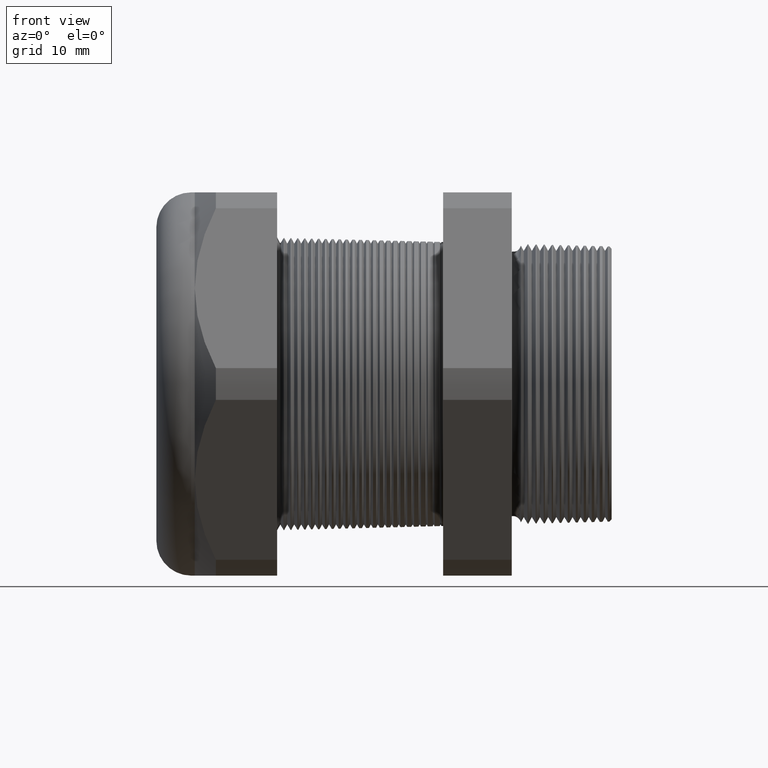
[diagram: clean part render]
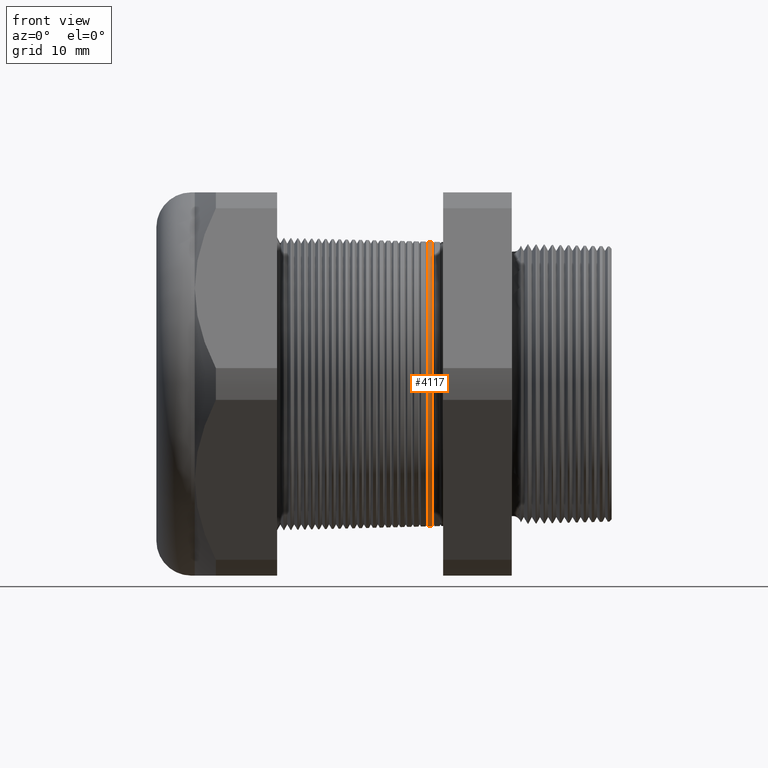
[diagram: same view with one face highlighted and labeled with its STEP entity id]
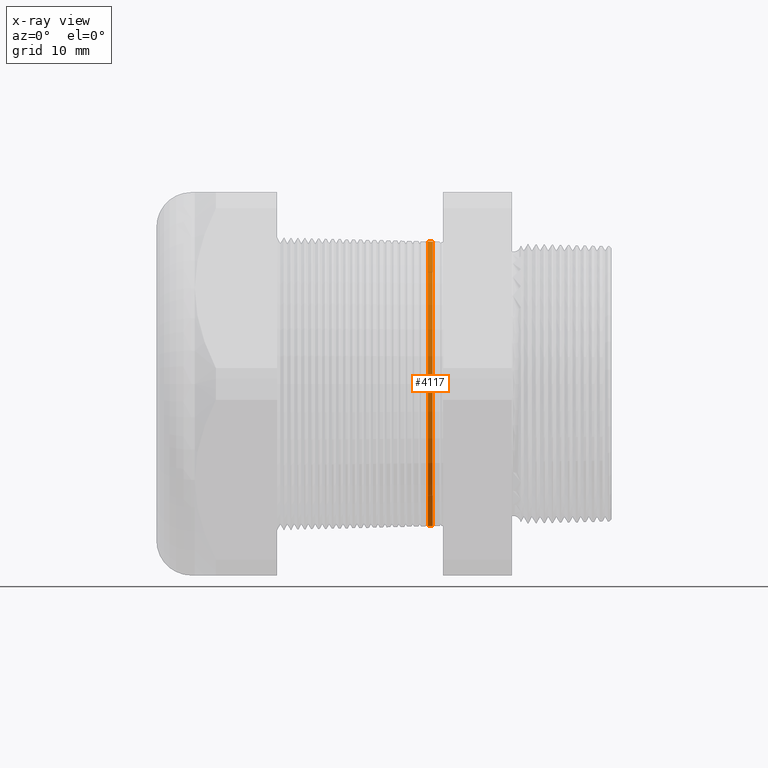
[diagram: x-ray of the same camera — body ghosted, the highlighted face saturated]
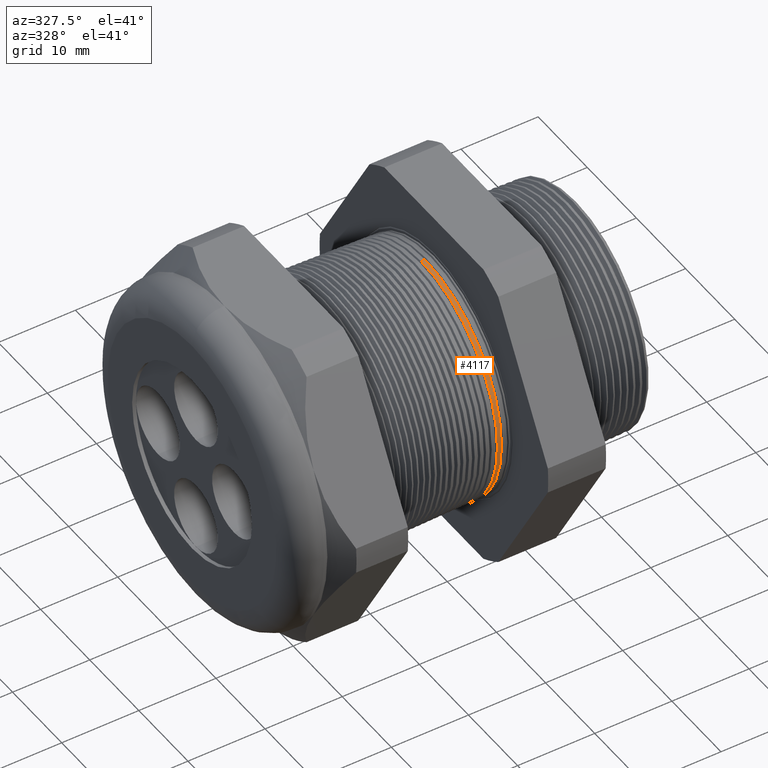
[diagram: same view with one face highlighted and labeled with its STEP entity id]
A machine part, front view. The second image highlights one B-rep face of the part: STEP entity #4117.
The next image is the same camera in x-ray: the body ghosted, the highlighted face saturated — about 0% of this face is hidden behind the body in this view.
A second angle (auxiliary view) of the same face is appended — the face is thin or edge-on in the first view.
In plain terms, the highlighted conical surface has half-angle 1.5 deg.
Its self-contained STEP definition (entity closure, byte-faithful):
#1732 = VERTEX_POINT ( 'NONE', #5336 ) ;
#1802 = VERTEX_POINT ( 'NONE', #5460 ) ;
#1807 = VERTEX_POINT ( 'NONE', #5452 ) ;
#1814 = VERTEX_POINT ( 'NONE', #5437 ) ;
#4010 = EDGE_CURVE ( 'NONE', #1732, #1807, #6274, .T. ) ;
#4015 = EDGE_CURVE ( 'NONE', #1802, #1814, #6266, .T. ) ;
#4101 = ORIENTED_EDGE ( 'NONE', *, *, #4105, .F. ) ;
#4102 = ORIENTED_EDGE ( 'NONE', *, *, #4010, .T. ) ;
#4105 = EDGE_CURVE ( 'NONE', #1732, #1802, #6421, .T. ) ;
#4109 = ORIENTED_EDGE ( 'NONE', *, *, #4015, .F. ) ;
#4112 = EDGE_LOOP ( 'NONE', ( #4109, #4101, #4102, #4114 ) ) ;
#4114 = ORIENTED_EDGE ( 'NONE', *, *, #4144, .F. ) ;
#4117 = ADVANCED_FACE ( 'NONE', ( #6404 ), #6466, .T. ) ;
#4144 = EDGE_CURVE ( 'NONE', #1814, #1807, #6471, .T. ) ;
#5336 = CARTESIAN_POINT ( 'NONE',  ( -0.6507958752806113400, 0.0000000000000000000, 0.6124680257419739000 ) ) ;
#5437 = CARTESIAN_POINT ( 'NONE',  ( -0.6714071321025516500, 7.507179794981259500E-017, -0.6130077504965555400 ) ) ;
#5452 = CARTESIAN_POINT ( 'NONE',  ( -0.6714071321025516500, 0.0000000000000000000, 0.6130077504965555400 ) ) ;
#5460 = CARTESIAN_POINT ( 'NONE',  ( -0.6507958752806113400, 7.503874934015664100E-017, -0.6124680257419739000 ) ) ;
#6263 = DIRECTION ( 'NONE',  ( -0.9996573249755573700, 3.205751595667379200E-018, -0.02617694830786597800 ) ) ;
#6264 = VECTOR ( 'NONE', #6263, 39.37007874015748100 ) ;
#6265 = CARTESIAN_POINT ( 'NONE',  ( -0.6052755905511808500, 7.485972398250841800E-017, -0.6112760351362424000 ) ) ;
#6266 = LINE ( 'NONE', #6265, #6264 ) ;
#6267 = DIRECTION ( 'NONE',  ( -0.9996573249755573700, 0.0000000000000000000, 0.02617694830786597800 ) ) ;
#6268 = VECTOR ( 'NONE', #6267, 39.37007874015748100 ) ;
#6269 = CARTESIAN_POINT ( 'NONE',  ( -0.6052755905511808500, 0.0000000000000000000, 0.6112760351362424000 ) ) ;
#6274 = LINE ( 'NONE', #6269, #6268 ) ;
#6404 = FACE_OUTER_BOUND ( 'NONE', #4112, .T. ) ;
#6417 = DIRECTION ( 'NONE',  ( 0.0000000000000000000, 0.0000000000000000000, 1.000000000000000000 ) ) ;
#6418 = DIRECTION ( 'NONE',  ( 1.000000000000000000, 0.0000000000000000000, 0.0000000000000000000 ) ) ;
#6419 = CARTESIAN_POINT ( 'NONE',  ( -0.6507958752806113400, 0.0000000000000000000, 0.0000000000000000000 ) ) ;
#6420 = AXIS2_PLACEMENT_3D ( 'NONE', #6419, #6418, #6417 ) ;
#6421 = CIRCLE ( 'NONE', #6420, 0.6124680257419739000 ) ;
#6462 = DIRECTION ( 'NONE',  ( 0.0000000000000000000, 0.0000000000000000000, 1.000000000000000000 ) ) ;
#6463 = DIRECTION ( 'NONE',  ( -1.000000000000000000, 0.0000000000000000000, 0.0000000000000000000 ) ) ;
#6464 = CARTESIAN_POINT ( 'NONE',  ( -0.6052755905511808500, 0.0000000000000000000, 0.0000000000000000000 ) ) ;
#6465 = AXIS2_PLACEMENT_3D ( 'NONE', #6464, #6463, #6462 ) ;
#6466 = CONICAL_SURFACE ( 'NONE', #6465, 0.6112760351362424000, 0.02617993877990776700 ) ;
#6467 = DIRECTION ( 'NONE',  ( 0.0000000000000000000, 0.0000000000000000000, -1.000000000000000000 ) ) ;
#6468 = DIRECTION ( 'NONE',  ( -1.000000000000000000, 0.0000000000000000000, 0.0000000000000000000 ) ) ;
#6469 = CARTESIAN_POINT ( 'NONE',  ( -0.6714071321025516500, 0.0000000000000000000, 0.0000000000000000000 ) ) ;
#6470 = AXIS2_PLACEMENT_3D ( 'NONE', #6469, #6468, #6467 ) ;
#6471 = CIRCLE ( 'NONE', #6470, 0.6130077504965554300 ) ;